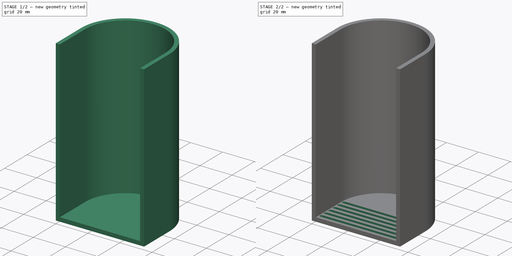
[diagram: build sequence overview — one tinted view per stage of 2, left to right]
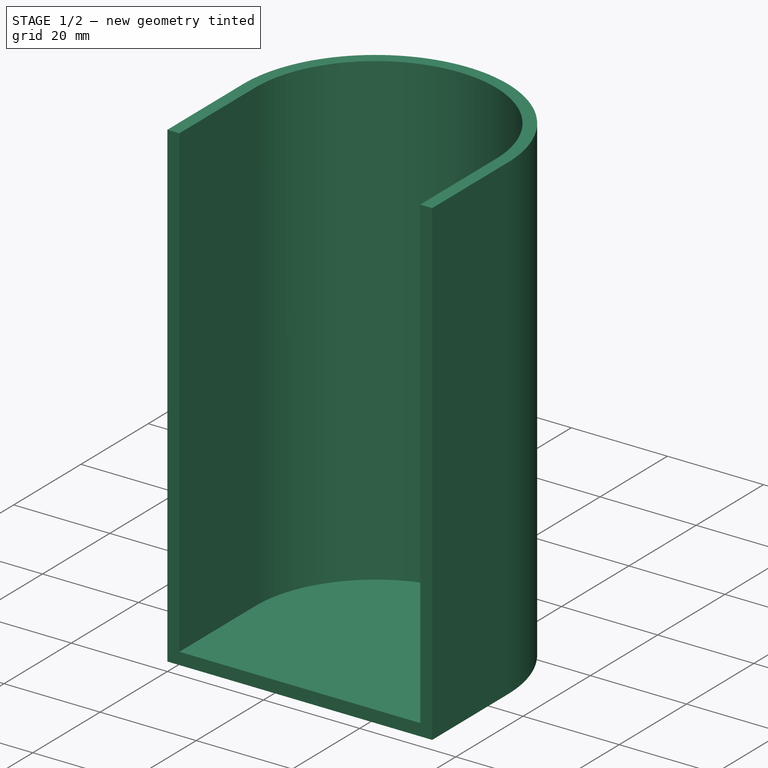
[diagram: stage 1 of 2 — iso view after this stage's code; geometry added in this stage tinted green]
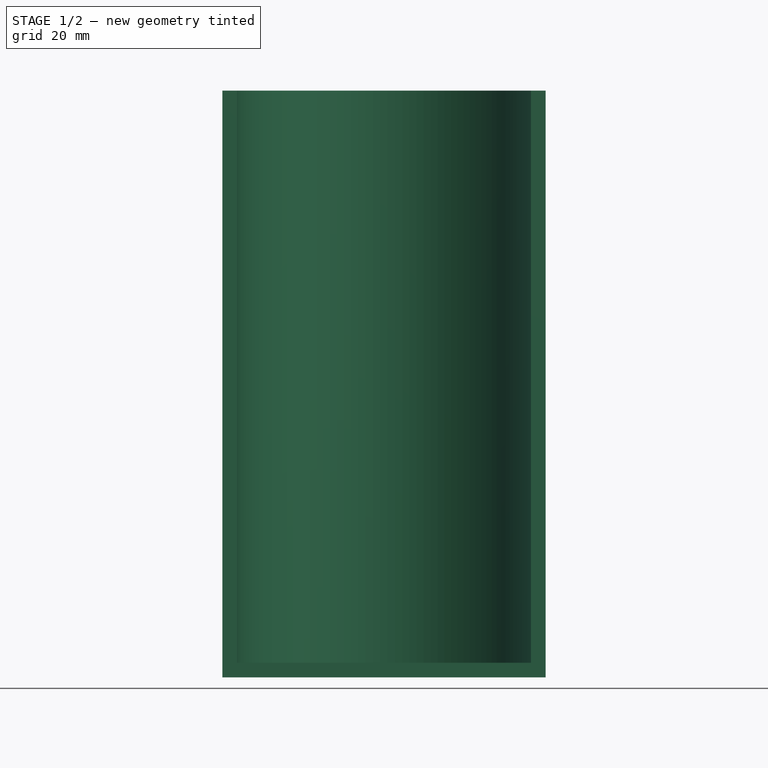
[diagram: stage 1 of 2 — front view after this stage's code; geometry added in this stage tinted green]
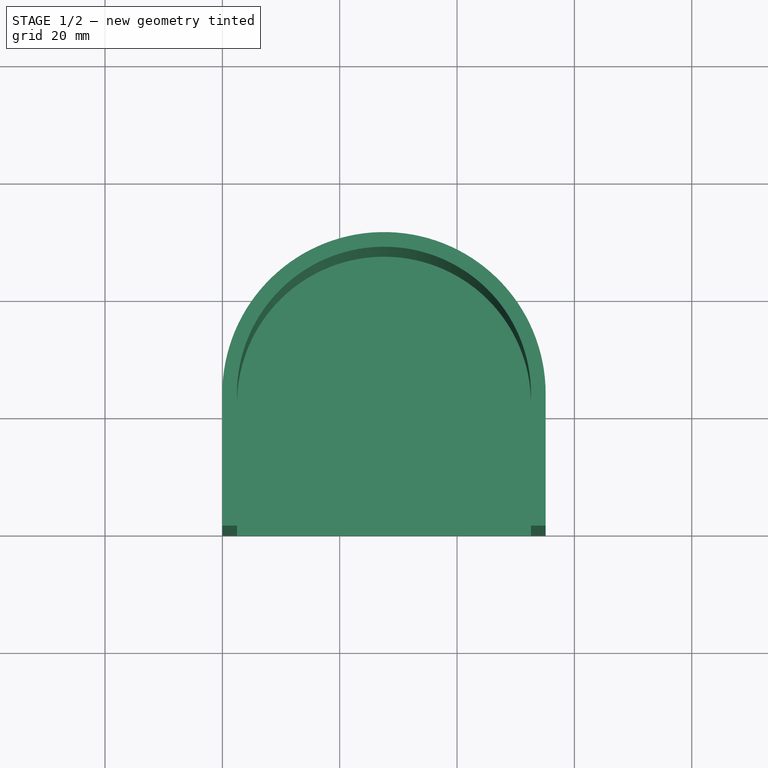
[diagram: stage 1 of 2 — top view after this stage's code; geometry added in this stage tinted green]
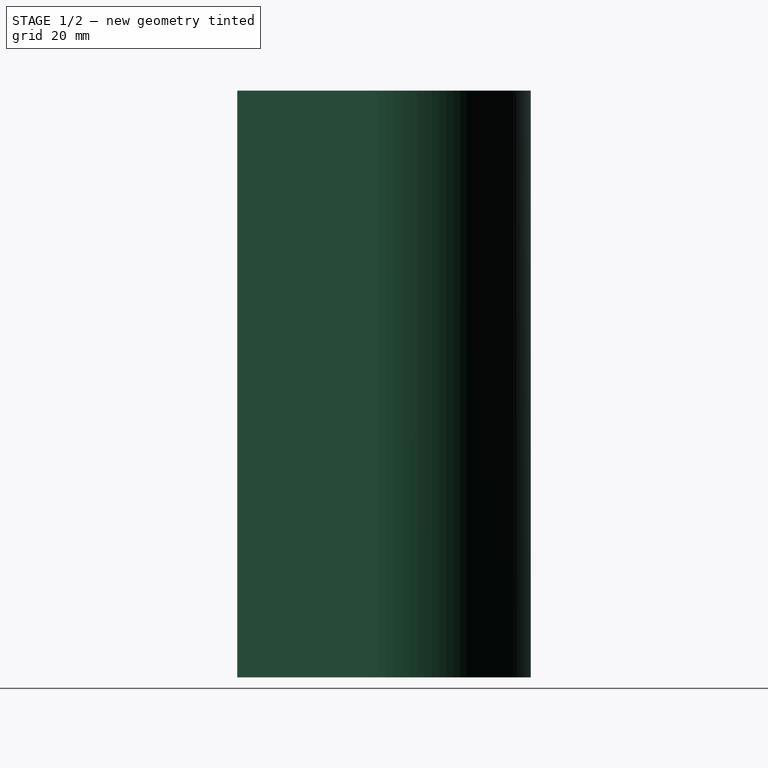
[diagram: stage 1 of 2 — right view after this stage's code; geometry added in this stage tinted green]
FCSTD DOCUMENT  (FreeCAD 0.18.4R)
Label: AirQProjectBase
License: All rights reserved
LicenseURL: http://en.wikipedia.org/wiki/All_rights_reserved
objects: Sketcher::SketchObject×3, PartDesign::Pocket×2, PartDesign::Pad×1, PartDesign::LinearPattern×1, PartDesign::Body×1
note: 11 computed .brp shape members not serialized (recipe doc carries the construction recipe); baked Part::Feature solids carry a one-line shape summary decoded from their .brp

FEATURE [Sketcher::SketchObject] Sketch
  MapMode = 5
  Support = -> [XY_Plane]
  sketch-geometry (4):
    g0: LineSegment StartX=55.1 StartY=22.5 StartZ=0 EndX=55.1 EndY=0 EndZ=0
    g1: LineSegment StartX=55.1 StartY=0 StartZ=0 EndX=0 EndY=0 EndZ=0
    g2: LineSegment StartX=0 StartY=0 StartZ=0 EndX=0 EndY=22.5001 EndZ=0
    g3: ArcOfCircle CenterX=27.55 CenterY=22.5 CenterZ=0 NormalX=0 NormalY=0 NormalZ=1 AngleXU=0 Radius=27.55 StartAngle=6.28318 EndAngle=9.42478
  constraints (11):
    c: Coincident(g0,g1)
    c: Coincident(g1,g2)
    c: Horizontal(g1)
    c: Vertical(g0)
    c: Vertical(g2)
    c: Coincident(g2,g3)
    c: Coincident(g0,g3)
    c: DistanceX(g1,g1) = 55.1
    c: DistanceY(g0,g0) = 22.5
    c: Coincident(g1,g-1)
    c: Radius(g3) = 27.55
FEATURE [PartDesign::Pad] Pad
  Length = 100
  Length2 = 100
  Profile = -> Sketch
  Type = 0
FEATURE [Sketcher::SketchObject] Sketch001
  ExternalGeometry = -> [Pad]
  MapMode = 5
  Placement = pos=(0,0,100) rot=(0,0,1;0rad)
  Support = -> [Pad]
  sketch-geometry (4):
    g0: ArcOfCircle CenterX=27.55 CenterY=22.5 CenterZ=0 NormalX=0 NormalY=0 NormalZ=1 AngleXU=0 Radius=25.05 StartAngle=0 EndAngle=3.14159
    g1: LineSegment StartX=52.6 StartY=22.5 StartZ=0 EndX=52.6 EndY=0 EndZ=0
    g2: LineSegment StartX=52.6 StartY=0 StartZ=0 EndX=2.5 EndY=0 EndZ=0
    g3: LineSegment StartX=2.5 StartY=0 StartZ=0 EndX=2.5 EndY=22.5 EndZ=0
  constraints (13):
    c: Coincident(g1,g2)
    c: Coincident(g2,g3)
    c: Vertical(g1)
    c: Vertical(g3)
    c: DistanceX(g2,g2) = 50.1
    c: Radius(g0) = 25.05
    c: PointOnObject(g2,g-3)
    c: Coincident(g0,g3)
    c: DistanceX(g-1,g2) = 2.5
    c: DistanceY(g1,g1) = 22.5
    c: Coincident(g0,g1)
    c: PointOnObject(g1,g-3)
    c: DistanceY(g1,g0) = 22.5
FEATURE [PartDesign::Pocket] Pocket
  BaseFeature = -> Pad
  Length = 97.5
  Length2 = 100
  Profile = -> Sketch001
  Type = 0
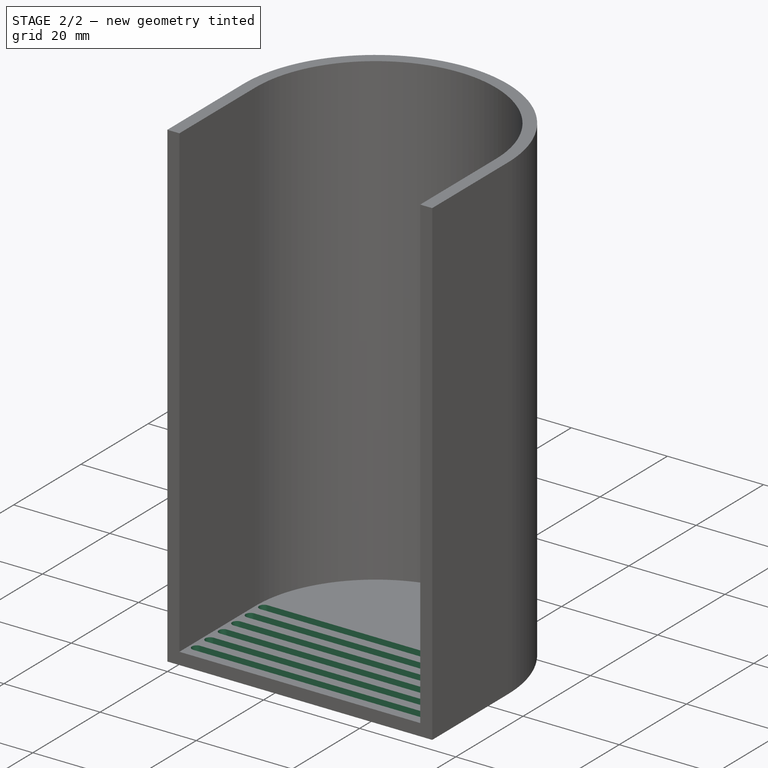
[diagram: stage 2 of 2 — iso view after this stage's code; geometry added in this stage tinted green]
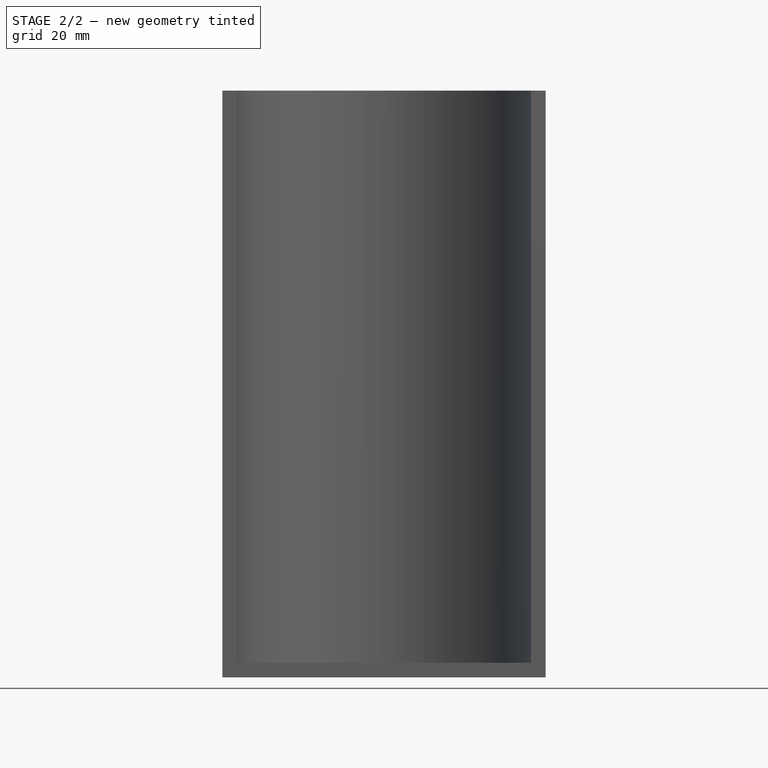
[diagram: stage 2 of 2 — front view after this stage's code; geometry added in this stage tinted green]
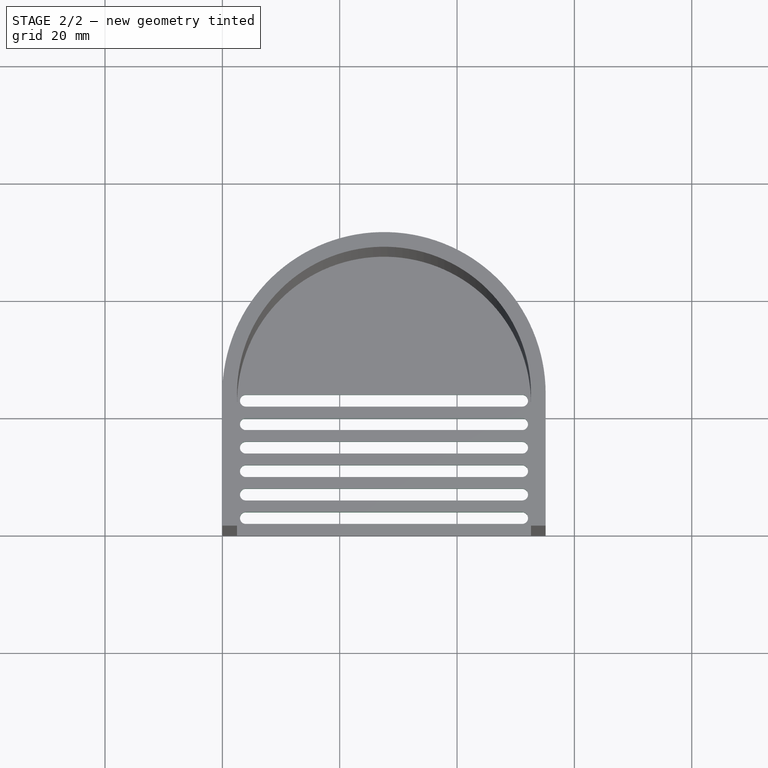
[diagram: stage 2 of 2 — top view after this stage's code; geometry added in this stage tinted green]
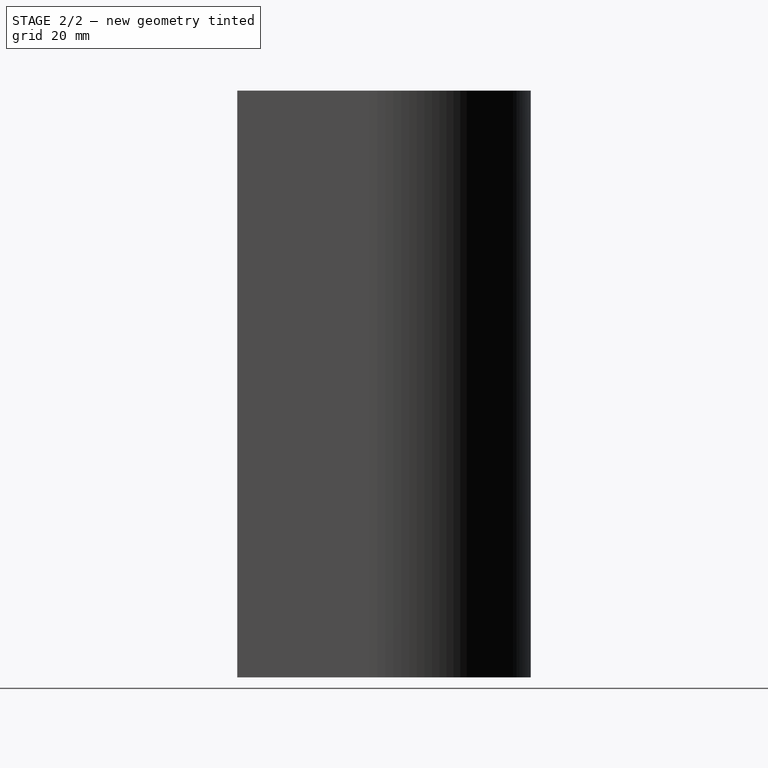
[diagram: stage 2 of 2 — right view after this stage's code; geometry added in this stage tinted green]
FEATURE [Sketcher::SketchObject] Sketch002
  ExternalGeometry = -> [Pocket]
  MapMode = 5
  Placement = pos=(0,0,0) rot=(1,0,0;3.14159rad)
  Support = -> [Pocket]
  sketch-geometry (4):
    g0: ArcOfCircle CenterX=4 CenterY=-3 CenterZ=0 NormalX=0 NormalY=0 NormalZ=1 AngleXU=0 Radius=1 StartAngle=1.5708 EndAngle=4.71239
    g1: ArcOfCircle CenterX=51.1 CenterY=-3 CenterZ=0 NormalX=0 NormalY=0 NormalZ=1 AngleXU=0 Radius=1 StartAngle=4.71239 EndAngle=7.85398
    g2: LineSegment StartX=4 StartY=-4 StartZ=0 EndX=51.1 EndY=-4 EndZ=0
    g3: LineSegment StartX=4 StartY=-2 StartZ=0 EndX=51.1 EndY=-2 EndZ=0
  constraints (10):
    c: Tangent(g0,g3) = 1.5708
    c: Tangent(g0,g2) = -1.5708
    c: Tangent(g2,g1) = -1.5708
    c: Tangent(g3,g1) = 1.5708
    c: Horizontal(g2)
    c: Equal(g0,g1)
    c: Radius(g1) = 1
    c: DistanceX(g-1,g0) = 4
    c: DistanceX(g1,g-5) = 4
    c: DistanceY(g0,g-1) = 3
FEATURE [PartDesign::Pocket] Pocket001
  BaseFeature = -> Pocket
  Length = 5
  Length2 = 100
  Profile = -> Sketch002
  Type = 2
FEATURE [PartDesign::LinearPattern] LinearPattern
  BaseFeature = -> Pocket001
  Direction = -> Y_Axis
  Length = 20
  Occurrences = 6
  Originals = -> [Pocket001]
FEATURE [PartDesign::Body] Body
  Group = -> [Sketch,Pad,Sketch001,Pocket,Sketch002,Pocket001,LinearPattern]
  Origin = -> Origin
  Tip = -> LinearPattern
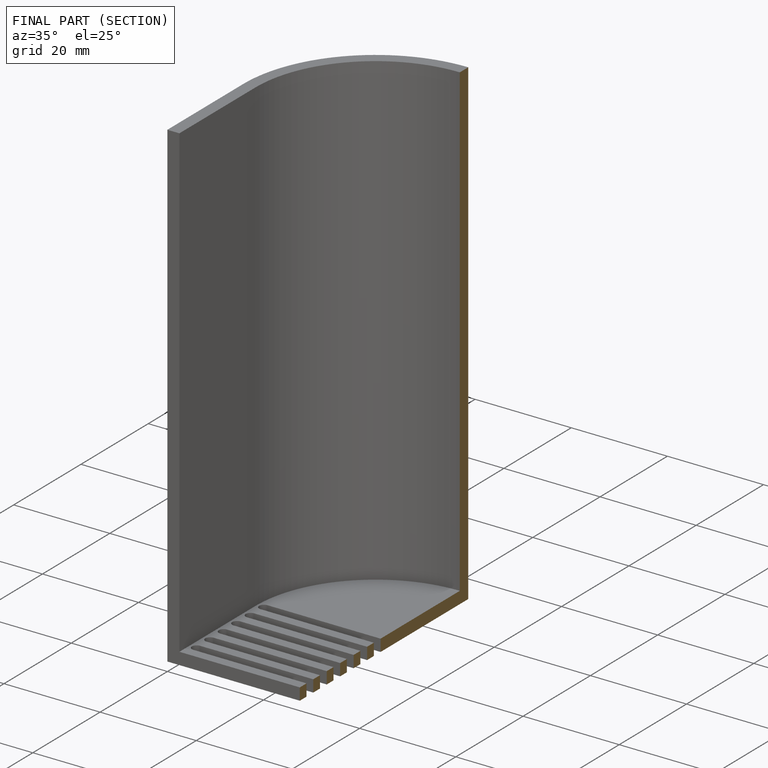
[diagram: finished part — half-section view (interior)]
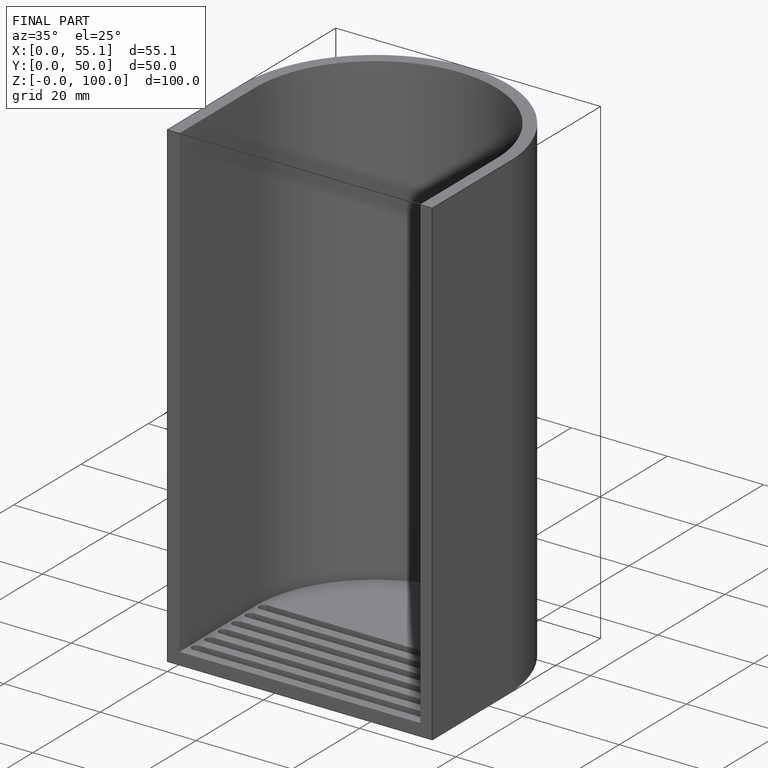
[diagram: finished part — iso view with bounding-box wireframe]
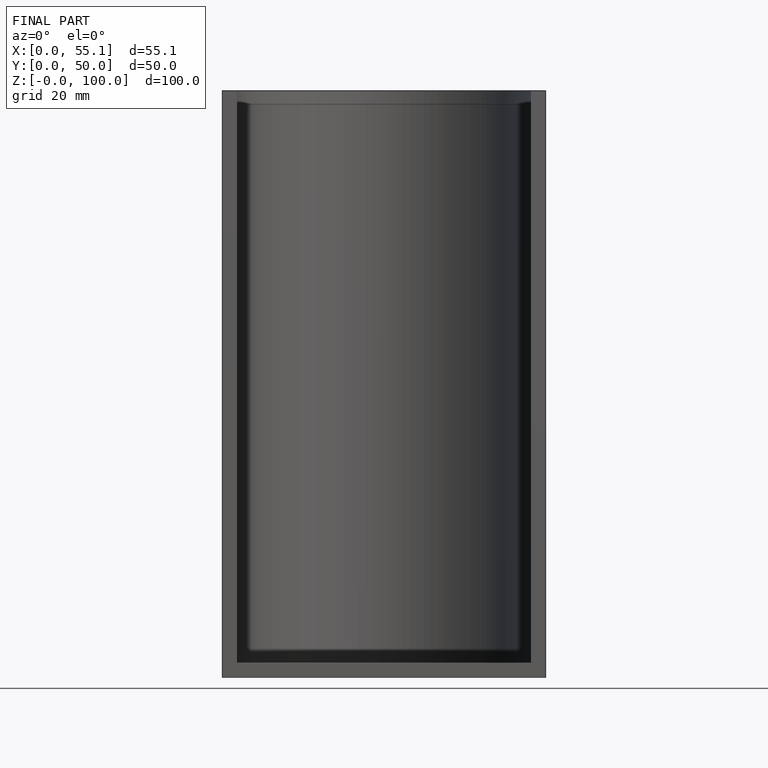
[diagram: finished part — front view with bounding-box wireframe]
